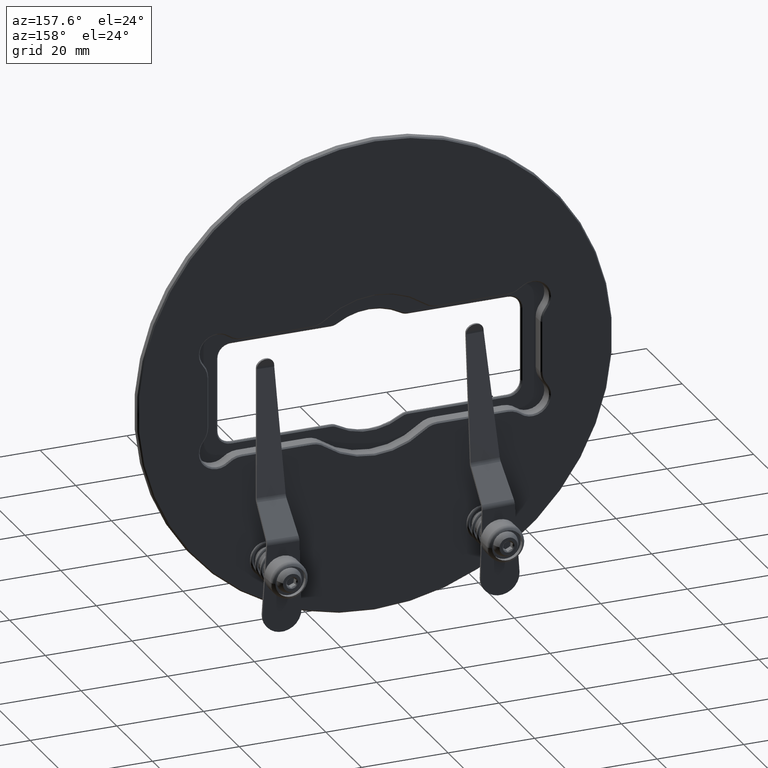
[diagram: clean part render]
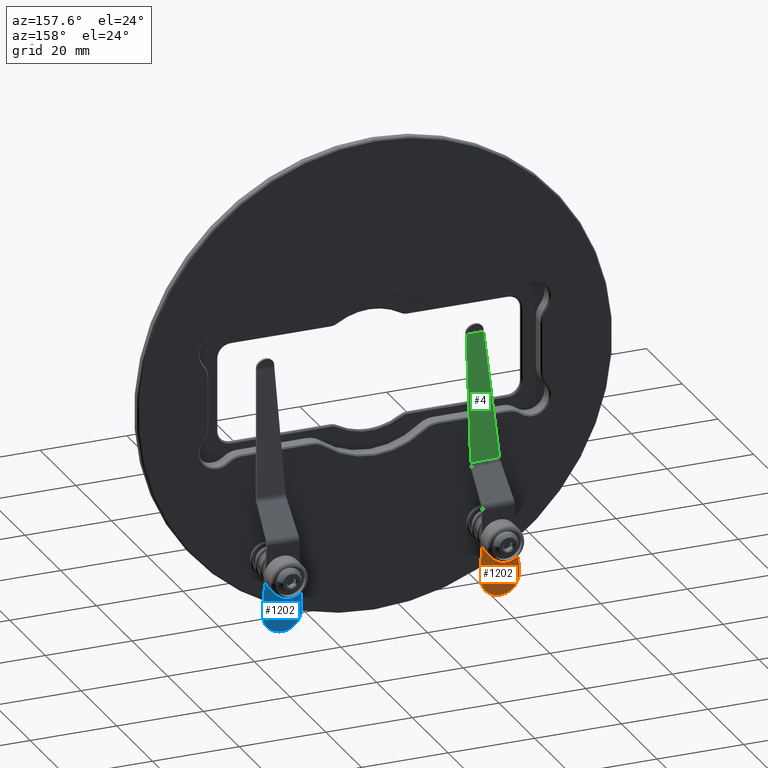
[diagram: same view with three faces highlighted in distinct colors, each labeled with its STEP entity id]
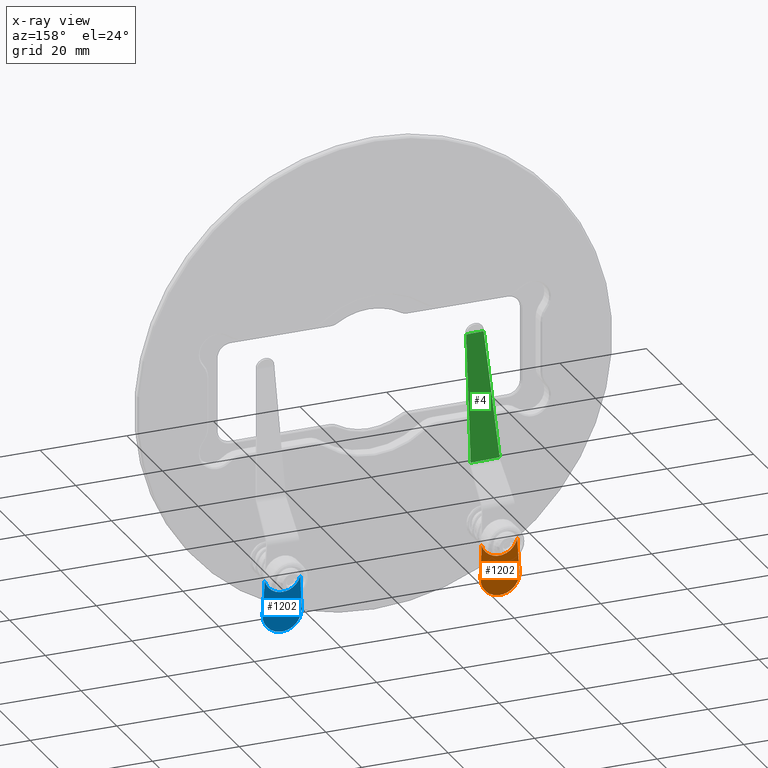
[diagram: x-ray of the same camera — body ghosted, the three highlighted faces saturated]
A machine part, auxiliary view with three faces highlighted in distinct colors.
The next image is the same camera in x-ray (body ghosted, the three faces saturated) — at least one of them is partly hidden behind the body in this view.
Their STEP definitions:

[orange] entity #1202 — the highlighted planar face has unit normal (0, 1, 0).
#155 = ORIENTED_EDGE ( 'NONE', *, *, #6246, .T. ) ;
#228 = DIRECTION ( 'NONE',  ( 0.000000000000000000, 1.000000000000000000, 0.000000000000000000 ) ) ;
#337 = ORIENTED_EDGE ( 'NONE', *, *, #7586, .T. ) ;
#465 = EDGE_CURVE ( 'NONE', #6146, #6999, #1806, .T. ) ;
#608 = VECTOR ( 'NONE', #2368, 1000.000000000000000 ) ;
#621 = CARTESIAN_POINT ( 'NONE',  ( 7.976256985056542348, 12.00000000000000000, -4.124857602312409277 ) ) ;
#887 = PLANE ( 'NONE',  #2440 ) ;
#1102 = DIRECTION ( 'NONE',  ( 0.000000000000000000, 1.000000000000000000, 0.000000000000000000 ) ) ;
#1122 = EDGE_CURVE ( 'NONE', #5011, #7700, #4837, .T. ) ;
#1202 = ADVANCED_FACE ( 'NONE', ( #6291 ), #887, .T. ) ;
#1206 = ORIENTED_EDGE ( 'NONE', *, *, #5498, .T. ) ;
#1311 = DIRECTION ( 'NONE',  ( 0.000000000000000000, -0.000000000000000000, 1.000000000000000000 ) ) ;
#1443 = AXIS2_PLACEMENT_3D ( 'NONE', #5018, #3189, #5618 ) ;
#1560 = AXIS2_PLACEMENT_3D ( 'NONE', #2354, #1102, #7279 ) ;
#1806 = CIRCLE ( 'NONE', #1560, 4.499999999999999112 ) ;
#2354 = CARTESIAN_POINT ( 'NONE',  ( 0.000000000000000000, 12.00000000000000000, 0.000000000000000000 ) ) ;
#2368 = DIRECTION ( 'NONE',  ( -0.9988655696858586008, -0.000000000000000000, -0.04761904761904752620 ) ) ;
#2440 = AXIS2_PLACEMENT_3D ( 'NONE', #6726, #3264, #1311 ) ;
#3189 = DIRECTION ( 'NONE',  ( 0.000000000000000000, 1.000000000000000000, 0.000000000000000000 ) ) ;
#3264 = DIRECTION ( 'NONE',  ( 0.000000000000000000, 1.000000000000000000, 0.000000000000000000 ) ) ;
#3675 = CARTESIAN_POINT ( 'NONE',  ( 0.000000000000000000, 12.00000000000000000, 0.000000000000000000 ) ) ;
#3808 = CARTESIAN_POINT ( 'NONE',  ( 0.000000000000000000, 12.00000000000000000, -4.499999999999999112 ) ) ;
#4113 = AXIS2_PLACEMENT_3D ( 'NONE', #5673, #228, #6908 ) ;
#4278 = VECTOR ( 'NONE', #5194, 1000.000000000000000 ) ;
#4374 = CIRCLE ( 'NONE', #4113, 4.499999999999999112 ) ;
#4436 = CARTESIAN_POINT ( 'NONE',  ( 7.976256985056542348, 12.00000000000000000, 4.124857602312410165 ) ) ;
#4714 = CARTESIAN_POINT ( 'NONE',  ( 5.510910596163087583E-16, 12.00000000000000000, 4.499999999999999112 ) ) ;
#4761 = ORIENTED_EDGE ( 'NONE', *, *, #5114, .T. ) ;
#4837 = CIRCLE ( 'NONE', #1443, 4.250000000000000000 ) ;
#5011 = VERTEX_POINT ( 'NONE', #621 ) ;
#5018 = CARTESIAN_POINT ( 'NONE',  ( 9.000000000000001776, 12.00000000000000000, 0.000000000000000000 ) ) ;
#5114 = EDGE_CURVE ( 'NONE', #5011, #6077, #5223, .T. ) ;
#5194 = DIRECTION ( 'NONE',  ( 0.9988655696858586008, 0.000000000000000000, -0.04761904761904760253 ) ) ;
#5223 = LINE ( 'NONE', #7647, #608 ) ;
#5420 = CARTESIAN_POINT ( 'NONE',  ( 0.2142857142857141628, 12.00000000000000000, 4.494895063586362483 ) ) ;
#5498 = EDGE_CURVE ( 'NONE', #7195, #7700, #6869, .T. ) ;
#5618 = DIRECTION ( 'NONE',  ( 0.000000000000000000, 0.000000000000000000, 1.000000000000000000 ) ) ;
#5673 = CARTESIAN_POINT ( 'NONE',  ( 0.000000000000000000, 12.00000000000000000, 0.000000000000000000 ) ) ;
#5980 = ORIENTED_EDGE ( 'NONE', *, *, #465, .T. ) ;
#6077 = VERTEX_POINT ( 'NONE', #6705 ) ;
#6146 = VERTEX_POINT ( 'NONE', #3808 ) ;
#6180 = DIRECTION ( 'NONE',  ( 0.000000000000000000, 1.000000000000000000, 0.000000000000000000 ) ) ;
#6211 = ORIENTED_EDGE ( 'NONE', *, *, #1122, .F. ) ;
#6246 = EDGE_CURVE ( 'NONE', #6999, #7195, #4374, .T. ) ;
#6291 = FACE_OUTER_BOUND ( 'NONE', #7802, .T. ) ;
#6705 = CARTESIAN_POINT ( 'NONE',  ( 0.2142857142857138297, 12.00000000000000000, -4.494895063586361594 ) ) ;
#6726 = CARTESIAN_POINT ( 'NONE',  ( 0.000000000000000000, 12.00000000000000000, 0.000000000000000000 ) ) ;
#6869 = LINE ( 'NONE', #6982, #4278 ) ;
#6908 = DIRECTION ( 'NONE',  ( 0.000000000000000000, 0.000000000000000000, 1.000000000000000000 ) ) ;
#6982 = CARTESIAN_POINT ( 'NONE',  ( 0.2142857142857141628, 12.00000000000000000, 4.494895063586362483 ) ) ;
#6999 = VERTEX_POINT ( 'NONE', #4714 ) ;
#7195 = VERTEX_POINT ( 'NONE', #5420 ) ;
#7228 = CIRCLE ( 'NONE', #7489, 4.499999999999999112 ) ;
#7279 = DIRECTION ( 'NONE',  ( 0.000000000000000000, 0.000000000000000000, 1.000000000000000000 ) ) ;
#7421 = DIRECTION ( 'NONE',  ( 0.000000000000000000, 0.000000000000000000, 1.000000000000000000 ) ) ;
#7489 = AXIS2_PLACEMENT_3D ( 'NONE', #3675, #6180, #7421 ) ;
#7586 = EDGE_CURVE ( 'NONE', #6077, #6146, #7228, .T. ) ;
#7647 = CARTESIAN_POINT ( 'NONE',  ( 0.2142857142857138297, 12.00000000000000000, -4.494895063586361594 ) ) ;
#7700 = VERTEX_POINT ( 'NONE', #4436 ) ;
#7802 = EDGE_LOOP ( 'NONE', ( #1206, #6211, #4761, #337, #5980, #155 ) ) ;

[blue] entity #1202 — the highlighted planar face has unit normal (0, 1, 0).
#155 = ORIENTED_EDGE ( 'NONE', *, *, #6246, .T. ) ;
#228 = DIRECTION ( 'NONE',  ( 0.000000000000000000, 1.000000000000000000, 0.000000000000000000 ) ) ;
#337 = ORIENTED_EDGE ( 'NONE', *, *, #7586, .T. ) ;
#465 = EDGE_CURVE ( 'NONE', #6146, #6999, #1806, .T. ) ;
#608 = VECTOR ( 'NONE', #2368, 1000.000000000000000 ) ;
#621 = CARTESIAN_POINT ( 'NONE',  ( 7.976256985056542348, 12.00000000000000000, -4.124857602312409277 ) ) ;
#887 = PLANE ( 'NONE',  #2440 ) ;
#1102 = DIRECTION ( 'NONE',  ( 0.000000000000000000, 1.000000000000000000, 0.000000000000000000 ) ) ;
#1122 = EDGE_CURVE ( 'NONE', #5011, #7700, #4837, .T. ) ;
#1202 = ADVANCED_FACE ( 'NONE', ( #6291 ), #887, .T. ) ;
#1206 = ORIENTED_EDGE ( 'NONE', *, *, #5498, .T. ) ;
#1311 = DIRECTION ( 'NONE',  ( 0.000000000000000000, -0.000000000000000000, 1.000000000000000000 ) ) ;
#1443 = AXIS2_PLACEMENT_3D ( 'NONE', #5018, #3189, #5618 ) ;
#1560 = AXIS2_PLACEMENT_3D ( 'NONE', #2354, #1102, #7279 ) ;
#1806 = CIRCLE ( 'NONE', #1560, 4.499999999999999112 ) ;
#2354 = CARTESIAN_POINT ( 'NONE',  ( 0.000000000000000000, 12.00000000000000000, 0.000000000000000000 ) ) ;
#2368 = DIRECTION ( 'NONE',  ( -0.9988655696858586008, -0.000000000000000000, -0.04761904761904752620 ) ) ;
#2440 = AXIS2_PLACEMENT_3D ( 'NONE', #6726, #3264, #1311 ) ;
#3189 = DIRECTION ( 'NONE',  ( 0.000000000000000000, 1.000000000000000000, 0.000000000000000000 ) ) ;
#3264 = DIRECTION ( 'NONE',  ( 0.000000000000000000, 1.000000000000000000, 0.000000000000000000 ) ) ;
#3675 = CARTESIAN_POINT ( 'NONE',  ( 0.000000000000000000, 12.00000000000000000, 0.000000000000000000 ) ) ;
#3808 = CARTESIAN_POINT ( 'NONE',  ( 0.000000000000000000, 12.00000000000000000, -4.499999999999999112 ) ) ;
#4113 = AXIS2_PLACEMENT_3D ( 'NONE', #5673, #228, #6908 ) ;
#4278 = VECTOR ( 'NONE', #5194, 1000.000000000000000 ) ;
#4374 = CIRCLE ( 'NONE', #4113, 4.499999999999999112 ) ;
#4436 = CARTESIAN_POINT ( 'NONE',  ( 7.976256985056542348, 12.00000000000000000, 4.124857602312410165 ) ) ;
#4714 = CARTESIAN_POINT ( 'NONE',  ( 5.510910596163087583E-16, 12.00000000000000000, 4.499999999999999112 ) ) ;
#4761 = ORIENTED_EDGE ( 'NONE', *, *, #5114, .T. ) ;
#4837 = CIRCLE ( 'NONE', #1443, 4.250000000000000000 ) ;
#5011 = VERTEX_POINT ( 'NONE', #621 ) ;
#5018 = CARTESIAN_POINT ( 'NONE',  ( 9.000000000000001776, 12.00000000000000000, 0.000000000000000000 ) ) ;
#5114 = EDGE_CURVE ( 'NONE', #5011, #6077, #5223, .T. ) ;
#5194 = DIRECTION ( 'NONE',  ( 0.9988655696858586008, 0.000000000000000000, -0.04761904761904760253 ) ) ;
#5223 = LINE ( 'NONE', #7647, #608 ) ;
#5420 = CARTESIAN_POINT ( 'NONE',  ( 0.2142857142857141628, 12.00000000000000000, 4.494895063586362483 ) ) ;
#5498 = EDGE_CURVE ( 'NONE', #7195, #7700, #6869, .T. ) ;
#5618 = DIRECTION ( 'NONE',  ( 0.000000000000000000, 0.000000000000000000, 1.000000000000000000 ) ) ;
#5673 = CARTESIAN_POINT ( 'NONE',  ( 0.000000000000000000, 12.00000000000000000, 0.000000000000000000 ) ) ;
#5980 = ORIENTED_EDGE ( 'NONE', *, *, #465, .T. ) ;
#6077 = VERTEX_POINT ( 'NONE', #6705 ) ;
#6146 = VERTEX_POINT ( 'NONE', #3808 ) ;
#6180 = DIRECTION ( 'NONE',  ( 0.000000000000000000, 1.000000000000000000, 0.000000000000000000 ) ) ;
#6211 = ORIENTED_EDGE ( 'NONE', *, *, #1122, .F. ) ;
#6246 = EDGE_CURVE ( 'NONE', #6999, #7195, #4374, .T. ) ;
#6291 = FACE_OUTER_BOUND ( 'NONE', #7802, .T. ) ;
#6705 = CARTESIAN_POINT ( 'NONE',  ( 0.2142857142857138297, 12.00000000000000000, -4.494895063586361594 ) ) ;
#6726 = CARTESIAN_POINT ( 'NONE',  ( 0.000000000000000000, 12.00000000000000000, 0.000000000000000000 ) ) ;
#6869 = LINE ( 'NONE', #6982, #4278 ) ;
#6908 = DIRECTION ( 'NONE',  ( 0.000000000000000000, 0.000000000000000000, 1.000000000000000000 ) ) ;
#6982 = CARTESIAN_POINT ( 'NONE',  ( 0.2142857142857141628, 12.00000000000000000, 4.494895063586362483 ) ) ;
#6999 = VERTEX_POINT ( 'NONE', #4714 ) ;
#7195 = VERTEX_POINT ( 'NONE', #5420 ) ;
#7228 = CIRCLE ( 'NONE', #7489, 4.499999999999999112 ) ;
#7279 = DIRECTION ( 'NONE',  ( 0.000000000000000000, 0.000000000000000000, 1.000000000000000000 ) ) ;
#7421 = DIRECTION ( 'NONE',  ( 0.000000000000000000, 0.000000000000000000, 1.000000000000000000 ) ) ;
#7489 = AXIS2_PLACEMENT_3D ( 'NONE', #3675, #6180, #7421 ) ;
#7586 = EDGE_CURVE ( 'NONE', #6077, #6146, #7228, .T. ) ;
#7647 = CARTESIAN_POINT ( 'NONE',  ( 0.2142857142857138297, 12.00000000000000000, -4.494895063586361594 ) ) ;
#7700 = VERTEX_POINT ( 'NONE', #4436 ) ;
#7802 = EDGE_LOOP ( 'NONE', ( #1206, #6211, #4761, #337, #5980, #155 ) ) ;

[green] entity #4 — the highlighted planar face has unit normal (-0.0032, -0.9882, -0.1528).
#4 = ADVANCED_FACE ( 'NONE', ( #7268 ), #6056, .F. ) ;
#419 = EDGE_CURVE ( 'NONE', #3648, #7226, #884, .T. ) ;
#650 = CARTESIAN_POINT ( 'NONE',  ( 24.22259675648831490, 4.894184878645157610, -6.000000000000000000 ) ) ;
#816 = VECTOR ( 'NONE', #3906, 1000.000000000000114 ) ;
#884 = LINE ( 'NONE', #6408, #816 ) ;
#1367 = ORIENTED_EDGE ( 'NONE', *, *, #6136, .F. ) ;
#1450 = CARTESIAN_POINT ( 'NONE',  ( -0.2970328511649378278, 8.686500750859940112, 4.519271219753558277 ) ) ;
#1632 = CARTESIAN_POINT ( 'NONE',  ( 52.26860373980111518, 0.5564636676417870076, -6.000000000000000000 ) ) ;
#2076 = ORIENTED_EDGE ( 'NONE', *, *, #7054, .F. ) ;
#2365 = VECTOR ( 'NONE', #2808, 1000.000000000000000 ) ;
#2543 = CARTESIAN_POINT ( 'NONE',  ( 52.26860373980112229, 0.5564636676417872296, -2.013302821285294808 ) ) ;
#2808 = DIRECTION ( 'NONE',  ( -0.000000000000000000, -0.000000000000000000, 1.000000000000000000 ) ) ;
#3175 = ORIENTED_EDGE ( 'NONE', *, *, #419, .F. ) ;
#3648 = VERTEX_POINT ( 'NONE', #7544 ) ;
#3906 = DIRECTION ( 'NONE',  ( 0.9871548882636549394, -0.1526778018672919346, 0.04706076278751528813 ) ) ;
#4121 = CARTESIAN_POINT ( 'NONE',  ( 52.26860373980112229, 0.5564636676417872296, 2.013302821285291255 ) ) ;
#4245 = EDGE_LOOP ( 'NONE', ( #2076, #3175, #5133, #1367 ) ) ;
#4369 = LINE ( 'NONE', #1450, #4509 ) ;
#4509 = VECTOR ( 'NONE', #5036, 1000.000000000000114 ) ;
#4873 = DIRECTION ( 'NONE',  ( -0.1528471521553527723, -0.9882498409197941758, 0.000000000000000000 ) ) ;
#5036 = DIRECTION ( 'NONE',  ( -0.9871548882636549394, 0.1526778018672919346, 0.04706076278751536446 ) ) ;
#5133 = ORIENTED_EDGE ( 'NONE', *, *, #5300, .T. ) ;
#5208 = CARTESIAN_POINT ( 'NONE',  ( 24.22259675648831490, 4.894184878645157610, 3.350343743100760108 ) ) ;
#5300 = EDGE_CURVE ( 'NONE', #3648, #6874, #7237, .T. ) ;
#5715 = AXIS2_PLACEMENT_3D ( 'NONE', #650, #4873, #7308 ) ;
#6031 = CARTESIAN_POINT ( 'NONE',  ( 24.22259675648831490, 4.894184878645157610, -6.000000000000000000 ) ) ;
#6056 = PLANE ( 'NONE',  #5715 ) ;
#6100 = VERTEX_POINT ( 'NONE', #4121 ) ;
#6136 = EDGE_CURVE ( 'NONE', #6100, #6874, #4369, .T. ) ;
#6184 = DIRECTION ( 'NONE',  ( -0.000000000000000000, -0.000000000000000000, 1.000000000000000000 ) ) ;
#6408 = CARTESIAN_POINT ( 'NONE',  ( -0.2970328511649382719, 8.686500750859940112, -4.519271219753557389 ) ) ;
#6874 = VERTEX_POINT ( 'NONE', #5208 ) ;
#7054 = EDGE_CURVE ( 'NONE', #7226, #6100, #7651, .T. ) ;
#7226 = VERTEX_POINT ( 'NONE', #2543 ) ;
#7237 = LINE ( 'NONE', #6031, #7447 ) ;
#7268 = FACE_OUTER_BOUND ( 'NONE', #4245, .T. ) ;
#7308 = DIRECTION ( 'NONE',  ( 0.9882498409197940648, -0.1528471521553527446, 0.000000000000000000 ) ) ;
#7447 = VECTOR ( 'NONE', #6184, 1000.000000000000000 ) ;
#7544 = CARTESIAN_POINT ( 'NONE',  ( 24.22259675648831490, 4.894184878645157610, -3.350343743100761440 ) ) ;
#7651 = LINE ( 'NONE', #1632, #2365 ) ;